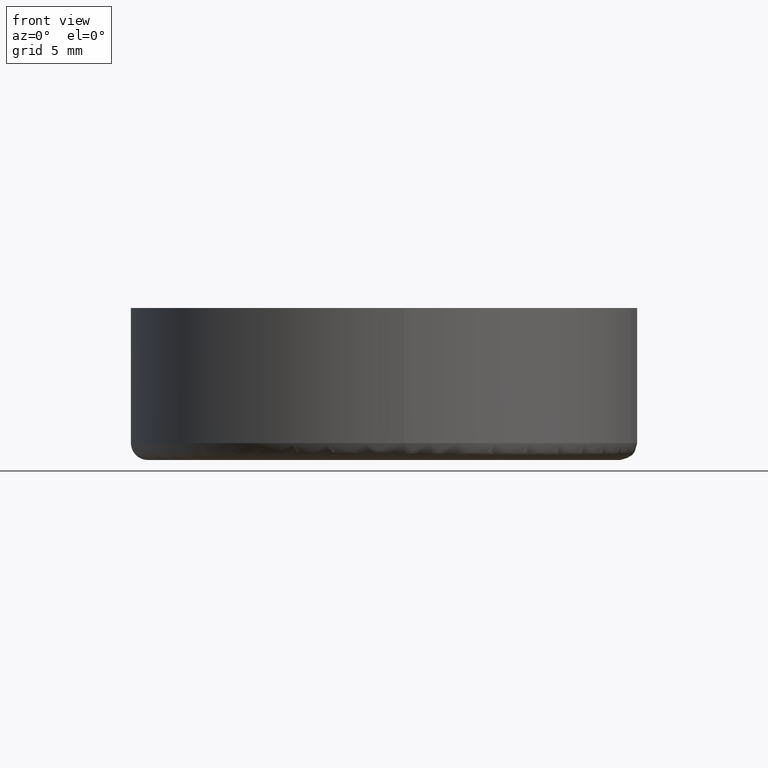
[diagram: clean part render]
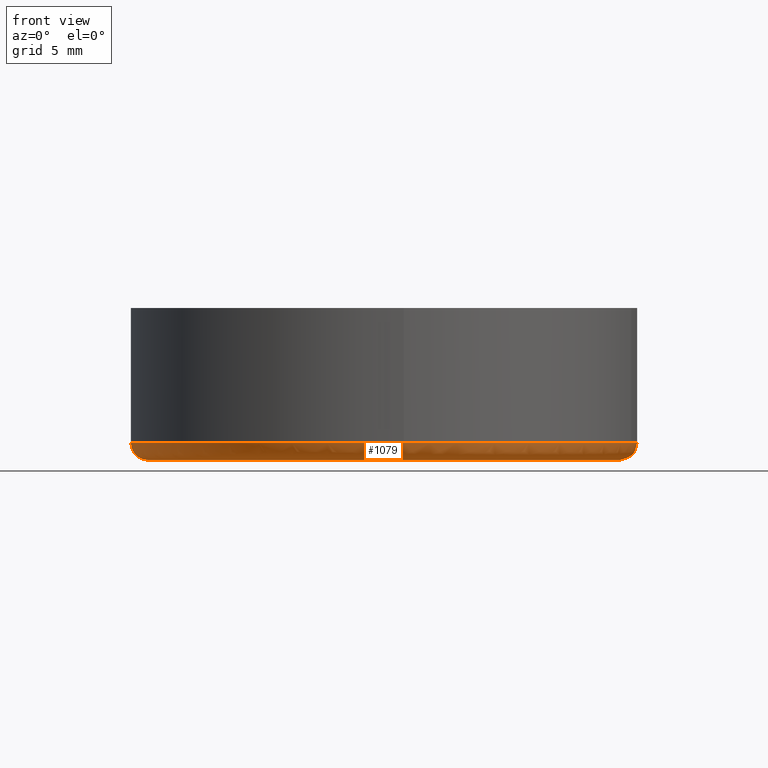
[diagram: same view with one face highlighted and labeled with its STEP entity id]
A machine part, front view. The second image highlights one B-rep face of the part: STEP entity #1079.
In plain terms, the highlighted face is a freeform B-spline surface patch.
Its self-contained STEP definition (entity closure, byte-faithful):
#70=CARTESIAN_POINT('',(-7.216511091337301,-11.996745991237420,0.000000356857896));
#71=VERTEX_POINT('',#70);
#72=CARTESIAN_POINT('',(-13.995578650399141,-0.351821336239177,1.874299E-016));
#73=VERTEX_POINT('',#72);
#74=CARTESIAN_POINT('',(-7.216511091337301,-11.996745991237422,0.000000356857896));
#75=CARTESIAN_POINT('',(-13.802436730045450,-8.035055702131242,0.000000178428948));
#76=CARTESIAN_POINT('',(-13.995578650399141,-0.351821336239177,1.874299E-016));
#84=(BOUNDED_CURVE()B_SPLINE_CURVE(2,(#74,#75,#76),.UNSPECIFIED.,.F.,.U.)B_SPLINE_CURVE_WITH_KNOTS((3,3),(0.838022801736637,0.995579891769269),.UNSPECIFIED.)CURVE()GEOMETRIC_REPRESENTATION_ITEM()RATIONAL_B_SPLINE_CURVE((0.866368646969517,0.811763793235545,0.989826157680359))REPRESENTATION_ITEM(''));
#85=EDGE_CURVE('',#71,#73,#84,.T.);
#102=CARTESIAN_POINT('',(-0.351821336244475,13.995578650466770,1.874299E-016));
#103=VERTEX_POINT('',#102);
#117=CARTESIAN_POINT('',(14.0,0.0,0.0));
#118=VERTEX_POINT('',#117);
#119=CARTESIAN_POINT('',(-0.351821336244475,13.995578650466772,1.874299E-016));
#120=CARTESIAN_POINT('',(-0.175938449752476,13.999999999999998,0.0));
#121=CARTESIAN_POINT('',(0.0,14.0,0.0));
#122=CARTESIAN_POINT('',(13.999999999999998,13.999999999999998,0.0));
#123=CARTESIAN_POINT('',(14.0,0.0,0.0));
#131=(BOUNDED_CURVE()B_SPLINE_CURVE(2,(#119,#120,#121,#122,#123),.UNSPECIFIED.,.F.,.U.)B_SPLINE_CURVE_WITH_KNOTS((3,2,3),(0.245579891769179,0.250000000000000,0.500000000000000),.UNSPECIFIED.)CURVE()GEOMETRIC_REPRESENTATION_ITEM()RATIONAL_B_SPLINE_CURVE((0.989826157680155,0.994821521091084,1.0,0.707106781186547,1.0))REPRESENTATION_ITEM(''));
#132=EDGE_CURVE('',#103,#118,#131,.T.);
#134=CARTESIAN_POINT('',(1.098427340218535,-13.956842672265889,-8.160243E-013));
#135=VERTEX_POINT('',#134);
#136=CARTESIAN_POINT('',(14.0,0.0,0.0));
#137=CARTESIAN_POINT('',(14.000000000000004,-12.941466883162205,0.0));
#138=CARTESIAN_POINT('',(1.098427340218535,-13.956842672265889,-8.160243E-013));
#146=(BOUNDED_CURVE()B_SPLINE_CURVE(2,(#136,#137,#138),.UNSPECIFIED.,.F.,.U.)B_SPLINE_CURVE_WITH_KNOTS((3,3),(0.500000000000000,0.736331300632071),.UNSPECIFIED.)CURVE()GEOMETRIC_REPRESENTATION_ITEM()RATIONAL_B_SPLINE_CURVE((1.0,0.723120658606012,0.969723356170363))REPRESENTATION_ITEM(''));
#147=EDGE_CURVE('',#118,#135,#146,.T.);
#240=CARTESIAN_POINT('',(1.098427340218535,-13.956842672265898,-8.160243E-013));
#241=CARTESIAN_POINT('',(0.550061558266888,-13.999999900000478,0.000000021881227));
#242=CARTESIAN_POINT('',(0.000000121616795,-13.999999797788870,0.000000044245854));
#243=CARTESIAN_POINT('',(-3.886299779734846,-13.999999075642338,0.000000202256650));
#244=CARTESIAN_POINT('',(-7.216511091337301,-11.996745991237422,0.000000356857896));
#252=(BOUNDED_CURVE()B_SPLINE_CURVE(2,(#240,#241,#242,#243,#244),.UNSPECIFIED.,.F.,.U.)B_SPLINE_CURVE_WITH_KNOTS((3,2,3),(0.736331300632070,0.750000000000000,0.838022801736637),.UNSPECIFIED.)CURVE()GEOMETRIC_REPRESENTATION_ITEM()RATIONAL_B_SPLINE_CURVE((0.969723356170361,0.983986122580534,1.0,0.896874873081512,0.866368646969517))REPRESENTATION_ITEM(''));
#253=EDGE_CURVE('',#135,#71,#252,.T.);
#812=CARTESIAN_POINT('',(14.639534999406409,-3.268641155137535,0.999999999999964));
#813=VERTEX_POINT('',#812);
#814=CARTESIAN_POINT('',(1.176877728282313,-14.953760691297580,1.000000000000031));
#815=VERTEX_POINT('',#814);
#816=CARTESIAN_POINT('',(14.639534999406402,-3.268641155137535,0.999999999999964));
#817=CARTESIAN_POINT('',(12.224672459072801,-14.084286862360996,1.0));
#818=CARTESIAN_POINT('',(1.176877728282313,-14.953760691297584,1.000000000000031));
#826=(BOUNDED_CURVE()B_SPLINE_CURVE(2,(#816,#817,#818),.UNSPECIFIED.,.F.,.U.)B_SPLINE_CURVE_WITH_KNOTS((3,3),(0.537286560370751,0.736331400453952),.UNSPECIFIED.)CURVE()GEOMETRIC_REPRESENTATION_ITEM()RATIONAL_B_SPLINE_CURVE((0.925662740296602,0.762027680026814,0.969723564491107))REPRESENTATION_ITEM(''));
#827=EDGE_CURVE('',#813,#815,#826,.T.);
#885=CARTESIAN_POINT('',(15.0,0.0,1.0));
#886=VERTEX_POINT('',#885);
#887=CARTESIAN_POINT('',(15.0,0.0,1.0));
#888=CARTESIAN_POINT('',(14.999999999999996,-1.654196576567423,1.0));
#889=CARTESIAN_POINT('',(14.639534999406409,-3.268641155137535,0.999999999999964));
#897=(BOUNDED_CURVE()B_SPLINE_CURVE(2,(#887,#888,#889),.UNSPECIFIED.,.F.,.U.)B_SPLINE_CURVE_WITH_KNOTS((3,3),(0.500000000000000,0.537286560370751),.UNSPECIFIED.)CURVE()GEOMETRIC_REPRESENTATION_ITEM()RATIONAL_B_SPLINE_CURVE((1.0,0.956316077258115,0.925662740296602))REPRESENTATION_ITEM(''));
#898=EDGE_CURVE('',#886,#813,#897,.T.);
#900=CARTESIAN_POINT('',(-0.376951431650352,14.995262839249490,0.999999999845046));
#901=VERTEX_POINT('',#900);
#902=CARTESIAN_POINT('',(-0.376951431650352,14.995262839249484,0.999999999845046));
#903=CARTESIAN_POINT('',(-0.188505481850985,15.000000000000004,1.0));
#904=CARTESIAN_POINT('',(0.0,15.0,1.0));
#905=CARTESIAN_POINT('',(14.999999999999996,14.999999999999996,1.0));
#906=CARTESIAN_POINT('',(15.0,0.0,1.0));
#914=(BOUNDED_CURVE()B_SPLINE_CURVE(2,(#902,#903,#904,#905,#906),.UNSPECIFIED.,.F.,.U.)B_SPLINE_CURVE_WITH_KNOTS((3,2,3),(0.245579891769801,0.250000000000000,0.500000000000000),.UNSPECIFIED.)CURVE()GEOMETRIC_REPRESENTATION_ITEM()RATIONAL_B_SPLINE_CURVE((0.989826157681561,0.994821521091812,1.0,0.707106781186547,1.0))REPRESENTATION_ITEM(''));
#915=EDGE_CURVE('',#901,#886,#914,.T.);
#932=CARTESIAN_POINT('',(-14.995262839249479,-0.376951431650642,0.999999999844865));
#933=VERTEX_POINT('',#932);
#947=CARTESIAN_POINT('',(1.176877728282313,-14.953760691297584,1.000000000000031));
#948=CARTESIAN_POINT('',(0.589347231092921,-14.999999999999996,1.0));
#949=CARTESIAN_POINT('',(0.0,-15.0,1.0));
#950=CARTESIAN_POINT('',(-14.627668142708698,-14.999999999999995,1.0));
#951=CARTESIAN_POINT('',(-14.995262839249484,-0.376951431650642,0.999999999844865));
#959=(BOUNDED_CURVE()B_SPLINE_CURVE(2,(#947,#948,#949,#950,#951),.UNSPECIFIED.,.F.,.U.)B_SPLINE_CURVE_WITH_KNOTS((3,2,3),(0.736331400453952,0.750000000000000,0.995579891769795),.UNSPECIFIED.)CURVE()GEOMETRIC_REPRESENTATION_ITEM()RATIONAL_B_SPLINE_CURVE((0.969723564491107,0.983986239529144,1.0,0.712285260094742,0.989826157681548))REPRESENTATION_ITEM(''));
#960=EDGE_CURVE('',#815,#933,#959,.T.);
#1014=CARTESIAN_POINT('',(-0.376890272703577,14.992829914473205,1.069724198540259));
#1015=CARTESIAN_POINT('',(14.615939641769629,15.369720187176783,1.069724198540260));
#1016=CARTESIAN_POINT('',(14.992829914473205,0.376890272703577,1.069724198540259));
#1017=CARTESIAN_POINT('',(15.369720187176785,-14.615939641769625,1.069724198540260));
#1018=CARTESIAN_POINT('',(0.376890272703582,-14.992829914473205,1.069724198540259));
#1019=CARTESIAN_POINT('',(-14.615939641769621,-15.369720187176785,1.069724198540260));
#1020=CARTESIAN_POINT('',(-14.992829914473205,-0.376890272703583,1.069724198540259));
#1021=CARTESIAN_POINT('',(-0.378905027116878,15.072977565993575,-0.077336022312903));
#1022=CARTESIAN_POINT('',(14.694072538876695,15.451882593110451,-0.077336022312903));
#1023=CARTESIAN_POINT('',(15.072977565993575,0.378905027116879,-0.077336022312903));
#1024=CARTESIAN_POINT('',(15.451882593110454,-14.694072538876688,-0.077336022312903));
#1025=CARTESIAN_POINT('',(0.378905027116883,-15.072977565993575,-0.077336022312903));
#1026=CARTESIAN_POINT('',(-14.694072538876688,-15.451882593110454,-0.077336022312903));
#1027=CARTESIAN_POINT('',(-15.072977565993575,-0.378905027116884,-0.077336022312903));
#1028=CARTESIAN_POINT('',(-0.350078542308912,13.926249685070262,0.002407669788962));
#1029=CARTESIAN_POINT('',(13.576171142761353,14.276328227379180,0.002407669788962));
#1030=CARTESIAN_POINT('',(13.926249685070262,0.350078542308913,0.002407669788962));
#1031=CARTESIAN_POINT('',(14.276328227379180,-13.576171142761348,0.002407669788962));
#1032=CARTESIAN_POINT('',(0.350078542308917,-13.926249685070262,0.002407669788962));
#1033=CARTESIAN_POINT('',(-13.576171142761348,-14.276328227379180,0.002407669788962));
#1034=CARTESIAN_POINT('',(-13.926249685070262,-0.350078542308918,0.002407669788962));
#1042=(BOUNDED_SURFACE()B_SPLINE_SURFACE(2,2,((#1014,#1021,#1028),(#1015,#1022,#1029),(#1016,#1023,#1030),(#1017,#1024,#1031),(#1018,#1025,#1032),(#1019,#1026,#1033),(#1020,#1027,#1034)),.UNSPECIFIED.,.F.,.F.,.U.)B_SPLINE_SURFACE_WITH_KNOTS((3,2,2,3),(3,3),(0.0,24.848781467195689,49.697562934391371,74.546344401587049),(0.0,1.822370696087853),.UNSPECIFIED.)GEOMETRIC_REPRESENTATION_ITEM()RATIONAL_B_SPLINE_SURFACE(((0.910892947162218,0.599412870471164,0.915966744701400),(0.644098579873404,0.423848905440654,0.647686296519727),(0.910892947162218,0.599412870471164,0.915966744701400),(0.644098579873404,0.423848905440654,0.647686296519727),(0.910892947162218,0.599412870471164,0.915966744701400),(0.644098579873404,0.423848905440654,0.647686296519727),(0.910892947162218,0.599412870471164,0.915966744701400)))REPRESENTATION_ITEM('')SURFACE());
#1043=ORIENTED_EDGE('',*,*,#132,.F.);
#1044=CARTESIAN_POINT('',(-0.376951431650352,14.995262839249486,0.999999999845046));
#1045=CARTESIAN_POINT('',(-0.376951431642274,14.995262838939684,1.002733E-009));
#1046=CARTESIAN_POINT('',(-0.351821336244475,13.995578650466774,1.874299E-016));
#1054=(BOUNDED_CURVE()B_SPLINE_CURVE(2,(#1044,#1045,#1046),.UNSPECIFIED.,.F.,.U.)B_SPLINE_CURVE_WITH_KNOTS((3,3),(-1.723441281665690,-0.263586879965622),.UNSPECIFIED.)CURVE()GEOMETRIC_REPRESENTATION_ITEM()RATIONAL_B_SPLINE_CURVE((0.883897567026207,0.626638727477658,0.888510408690228))REPRESENTATION_ITEM(''));
#1055=EDGE_CURVE('',#901,#103,#1054,.T.);
#1056=ORIENTED_EDGE('',*,*,#1055,.F.);
#1057=ORIENTED_EDGE('',*,*,#915,.T.);
#1058=ORIENTED_EDGE('',*,*,#898,.T.);
#1059=ORIENTED_EDGE('',*,*,#827,.T.);
#1060=ORIENTED_EDGE('',*,*,#960,.T.);
#1061=CARTESIAN_POINT('',(-14.995262839249484,-0.376951431650642,0.999999999844865));
#1062=CARTESIAN_POINT('',(-14.995262838939318,-0.376951431642264,8.672462E-010));
#1063=CARTESIAN_POINT('',(-13.995578650399146,-0.351821336239177,1.874299E-016));
#1071=(BOUNDED_CURVE()B_SPLINE_CURVE(2,(#1061,#1062,#1063),.UNSPECIFIED.,.F.,.U.)B_SPLINE_CURVE_WITH_KNOTS((3,3),(-1.723441281665317,-0.263586879825398),.UNSPECIFIED.)CURVE()GEOMETRIC_REPRESENTATION_ITEM()RATIONAL_B_SPLINE_CURVE((0.883897567026075,0.626638727453015,0.888510408740535))REPRESENTATION_ITEM(''));
#1072=EDGE_CURVE('',#933,#73,#1071,.T.);
#1073=ORIENTED_EDGE('',*,*,#1072,.T.);
#1074=ORIENTED_EDGE('',*,*,#85,.F.);
#1075=ORIENTED_EDGE('',*,*,#253,.F.);
#1076=ORIENTED_EDGE('',*,*,#147,.F.);
#1077=EDGE_LOOP('',(#1043,#1056,#1057,#1058,#1059,#1060,#1073,#1074,#1075,#1076));
#1078=FACE_OUTER_BOUND('',#1077,.T.);
#1079=ADVANCED_FACE('',(#1078),#1042,.T.);